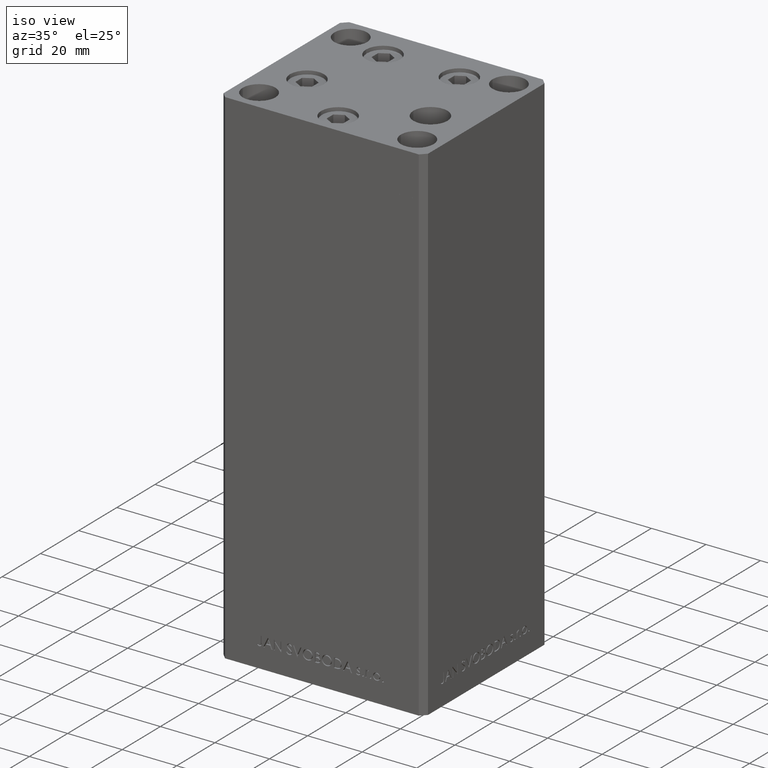
[diagram: clean part render]
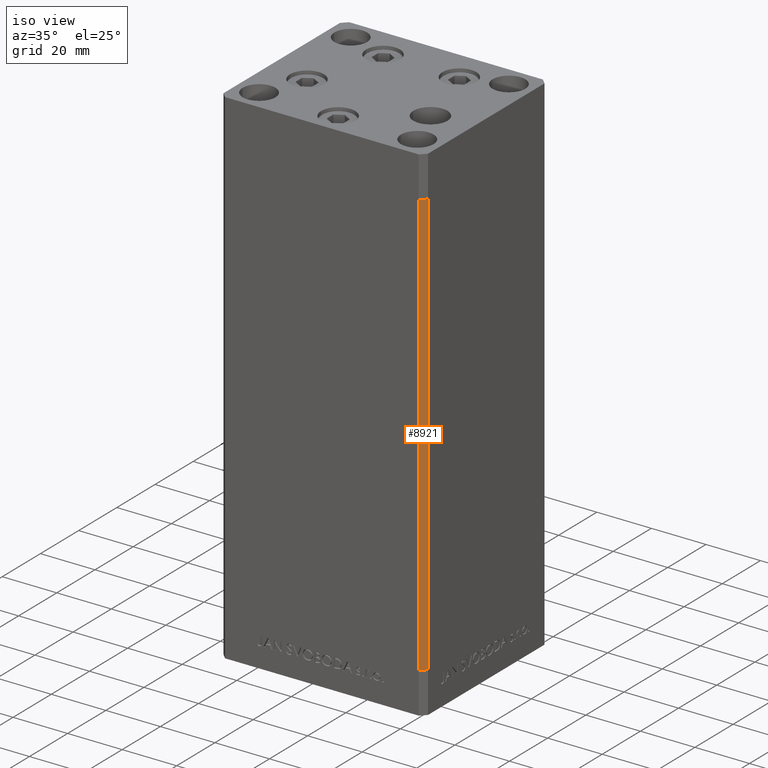
[diagram: same view with one face highlighted and labeled with its STEP entity id]
A machine part, iso view. The second image highlights one B-rep face of the part: STEP entity #8921.
In plain terms, the highlighted planar face has unit normal (0.7071, -0.7071, 0).
Its self-contained STEP definition (entity closure, byte-faithful):
#513 = DIRECTION ( 'NONE',  ( -0.000000000000000000, -0.000000000000000000, -1.000000000000000000 ) ) ;
#763 = LINE ( 'NONE', #22533, #42727 ) ;
#972 = EDGE_CURVE ( 'NONE', #16195, #34824, #29872, .T. ) ;
#4955 = ORIENTED_EDGE ( 'NONE', *, *, #16665, .T. ) ;
#7278 = CARTESIAN_POINT ( 'NONE',  ( 37.49999999999999289, -30.50000000000000000, 0.000000000000000000 ) ) ;
#7373 = DIRECTION ( 'NONE',  ( -0.7071067811865474617, -0.7071067811865474617, 0.000000000000000000 ) ) ;
#8921 = ADVANCED_FACE ( 'NONE', ( #21619 ), #11188, .T. ) ;
#10136 = DIRECTION ( 'NONE',  ( -0.000000000000000000, -0.000000000000000000, -1.000000000000000000 ) ) ;
#10407 = VERTEX_POINT ( 'NONE', #18029 ) ;
#10699 = CARTESIAN_POINT ( 'NONE',  ( 37.49999999999999289, -30.50000000000000000, 156.0000000000000000 ) ) ;
#10976 = LINE ( 'NONE', #7278, #19506 ) ;
#11188 = PLANE ( 'NONE',  #20511 ) ;
#16195 = VERTEX_POINT ( 'NONE', #47564 ) ;
#16665 = EDGE_CURVE ( 'NONE', #34824, #19066, #37588, .T. ) ;
#17889 = DIRECTION ( 'NONE',  ( 0.7071067811865474617, 0.7071067811865474617, 0.000000000000000000 ) ) ;
#18029 = CARTESIAN_POINT ( 'NONE',  ( 37.49999999999999289, -30.50000000000000000, 0.000000000000000000 ) ) ;
#19066 = VERTEX_POINT ( 'NONE', #41986 ) ;
#19500 = ORIENTED_EDGE ( 'NONE', *, *, #48050, .F. ) ;
#19506 = VECTOR ( 'NONE', #37466, 1000.000000000000114 ) ;
#20511 = AXIS2_PLACEMENT_3D ( 'NONE', #10699, #29267, #17889 ) ;
#21619 = FACE_OUTER_BOUND ( 'NONE', #30918, .T. ) ;
#22533 = CARTESIAN_POINT ( 'NONE',  ( 37.49999999999999289, -30.50000000000000000, 156.0000000000000000 ) ) ;
#28171 = VECTOR ( 'NONE', #7373, 1000.000000000000114 ) ;
#29267 = DIRECTION ( 'NONE',  ( 0.7071067811865475727, -0.7071067811865475727, 0.000000000000000000 ) ) ;
#29872 = LINE ( 'NONE', #48437, #28171 ) ;
#30918 = EDGE_LOOP ( 'NONE', ( #45631, #19500, #44140, #4955 ) ) ;
#31183 = EDGE_CURVE ( 'NONE', #10407, #19066, #10976, .T. ) ;
#34824 = VERTEX_POINT ( 'NONE', #48742 ) ;
#37466 = DIRECTION ( 'NONE',  ( -0.7071067811865474617, -0.7071067811865474617, 0.000000000000000000 ) ) ;
#37588 = LINE ( 'NONE', #48957, #45141 ) ;
#41986 = CARTESIAN_POINT ( 'NONE',  ( 35.49999999999999289, -32.50000000000000000, 0.000000000000000000 ) ) ;
#42727 = VECTOR ( 'NONE', #513, 1000.000000000000000 ) ;
#44140 = ORIENTED_EDGE ( 'NONE', *, *, #972, .T. ) ;
#45141 = VECTOR ( 'NONE', #10136, 1000.000000000000000 ) ;
#45631 = ORIENTED_EDGE ( 'NONE', *, *, #31183, .F. ) ;
#47564 = CARTESIAN_POINT ( 'NONE',  ( 37.49999999999999289, -30.50000000000000000, 156.0000000000000000 ) ) ;
#48050 = EDGE_CURVE ( 'NONE', #16195, #10407, #763, .T. ) ;
#48437 = CARTESIAN_POINT ( 'NONE',  ( 37.49999999999999289, -30.50000000000000000, 156.0000000000000000 ) ) ;
#48742 = CARTESIAN_POINT ( 'NONE',  ( 35.49999999999999289, -32.50000000000000000, 156.0000000000000000 ) ) ;
#48957 = CARTESIAN_POINT ( 'NONE',  ( 35.49999999999999289, -32.50000000000000000, 156.0000000000000000 ) ) ;